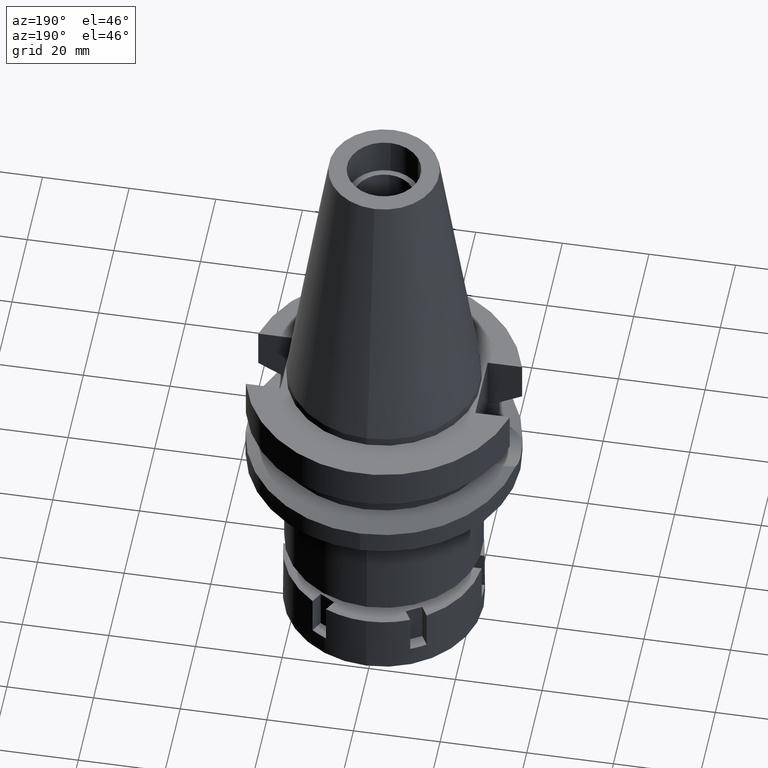
[diagram: clean part render]
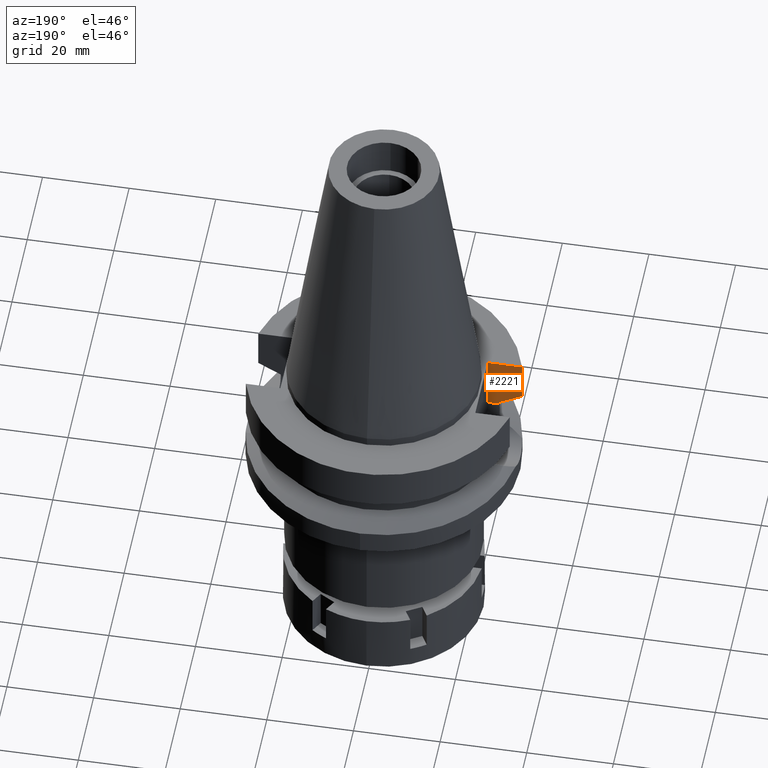
[diagram: same view with one face highlighted and labeled with its STEP entity id]
A machine part, auxiliary view. The second image highlights one B-rep face of the part: STEP entity #2221.
In plain terms, the highlighted planar face has unit normal (0, -1, 0).
Its self-contained STEP definition (entity closure, byte-faithful):
#1 = VERTEX_POINT ( 'NONE', #3275 ) ;
#72 = CARTESIAN_POINT ( 'NONE',  ( -22.50000000000000000, -8.050000000000000711, -14.94999999999999929 ) ) ;
#87 = FACE_OUTER_BOUND ( 'NONE', #2312, .T. ) ;
#116 = ORIENTED_EDGE ( 'NONE', *, *, #3330, .T. ) ;
#129 = DIRECTION ( 'NONE',  ( -1.000000000000000000, 3.550916904668000126E-14, 0.0000000000000000000 ) ) ;
#192 = ORIENTED_EDGE ( 'NONE', *, *, #829, .T. ) ;
#246 = ORIENTED_EDGE ( 'NONE', *, *, #1316, .F. ) ;
#391 = VECTOR ( 'NONE', #3412, 1000.000000000000114 ) ;
#409 = CARTESIAN_POINT ( 'NONE',  ( -22.50000000000000000, -8.050000000000000711, -2.000000000000000000 ) ) ;
#723 = CARTESIAN_POINT ( 'NONE',  ( -25.24772413746000055, -8.049995396191999220, -14.45229217772000041 ) ) ;
#791 = EDGE_CURVE ( 'NONE', #2329, #1747, #3487, .T. ) ;
#829 = EDGE_CURVE ( 'NONE', #2283, #1747, #2604, .T. ) ;
#872 = VERTEX_POINT ( 'NONE', #2079 ) ;
#880 = DIRECTION ( 'NONE',  ( 0.0000000000000000000, 0.0000000000000000000, -1.000000000000000000 ) ) ;
#890 = ORIENTED_EDGE ( 'NONE', *, *, #3099, .T. ) ;
#951 = CARTESIAN_POINT ( 'NONE',  ( -25.24772266958000344, -8.050000000000000711, -14.94999999999999929 ) ) ;
#961 = VECTOR ( 'NONE', #129, 1000.000000000000000 ) ;
#1171 = ORIENTED_EDGE ( 'NONE', *, *, #791, .F. ) ;
#1185 = DIRECTION ( 'NONE',  ( 0.0000000000000000000, -1.000000000000000000, 0.0000000000000000000 ) ) ;
#1316 = EDGE_CURVE ( 'NONE', #2505, #872, #3375, .T. ) ;
#1320 = AXIS2_PLACEMENT_3D ( 'NONE', #72, #1185, #1502 ) ;
#1330 = LINE ( 'NONE', #2425, #2061 ) ;
#1345 = DIRECTION ( 'NONE',  ( 2.014680238284988723E-08, -7.621779753744955794E-08, 0.9999999999999968914 ) ) ;
#1502 = DIRECTION ( 'NONE',  ( 0.0000000000000000000, 0.0000000000000000000, -1.000000000000000000 ) ) ;
#1549 = EDGE_CURVE ( 'NONE', #2329, #872, #2982, .T. ) ;
#1747 = VERTEX_POINT ( 'NONE', #2075 ) ;
#1841 = DIRECTION ( 'NONE',  ( -1.000000000000000000, 1.616208268639000174E-14, -1.292966614911000084E-14 ) ) ;
#1894 = CARTESIAN_POINT ( 'NONE',  ( -30.45402291549999774, -8.049999270937000517, -11.56551221918000039 ) ) ;
#1977 = CARTESIAN_POINT ( 'NONE',  ( -22.50000000000000000, -8.050000000000000711, -2.000000000000000000 ) ) ;
#2061 = VECTOR ( 'NONE', #1841, 1000.000000000000000 ) ;
#2075 = CARTESIAN_POINT ( 'NONE',  ( -25.24772413746000055, -8.049995396191999220, -14.45229217772000041 ) ) ;
#2079 = CARTESIAN_POINT ( 'NONE',  ( -30.45402272279000044, -8.050000000000000711, -2.000000000000000000 ) ) ;
#2221 = ADVANCED_FACE ( 'NONE', ( #87 ), #2512, .F. ) ;
#2267 = CARTESIAN_POINT ( 'NONE',  ( -30.45402291549999774, -8.049999270937000517, -11.56551221918000039 ) ) ;
#2269 = LINE ( 'NONE', #1977, #3270 ) ;
#2283 = VERTEX_POINT ( 'NONE', #3478 ) ;
#2312 = EDGE_LOOP ( 'NONE', ( #1171, #3115, #246, #890, #116, #192 ) ) ;
#2329 = VERTEX_POINT ( 'NONE', #3223 ) ;
#2420 = CARTESIAN_POINT ( 'NONE',  ( -22.50000000000000000, -8.050000000000000711, -2.000000000000000000 ) ) ;
#2425 = CARTESIAN_POINT ( 'NONE',  ( -22.50000000000000000, -8.050000000000000711, -14.94999999999999929 ) ) ;
#2505 = VERTEX_POINT ( 'NONE', #2420 ) ;
#2512 = PLANE ( 'NONE',  #1320 ) ;
#2604 = LINE ( 'NONE', #951, #391 ) ;
#2826 = CARTESIAN_POINT ( 'NONE',  ( -26.83754594054483888, -8.049990782187768090, -13.57774900847907062 ) ) ;
#2982 = LINE ( 'NONE', #1894, #3261 ) ;
#3099 = EDGE_CURVE ( 'NONE', #2505, #1, #2269, .T. ) ;
#3115 = ORIENTED_EDGE ( 'NONE', *, *, #1549, .T. ) ;
#3223 = CARTESIAN_POINT ( 'NONE',  ( -30.45402291549999774, -8.049999270937000517, -11.56551221918000039 ) ) ;
#3261 = VECTOR ( 'NONE', #1345, 1000.000000000000000 ) ;
#3270 = VECTOR ( 'NONE', #880, 1000.000000000000000 ) ;
#3275 = CARTESIAN_POINT ( 'NONE',  ( -22.50000000000000000, -8.050000000000000711, -14.94999999999999929 ) ) ;
#3330 = EDGE_CURVE ( 'NONE', #1, #2283, #1330, .T. ) ;
#3375 = LINE ( 'NONE', #409, #961 ) ;
#3412 = DIRECTION ( 'NONE',  ( -2.949280787093910701E-06, 9.250021163603722903E-06, 0.9999999999528693673 ) ) ;
#3450 = CARTESIAN_POINT ( 'NONE',  ( -28.57292307904591411, -8.049998542826038772, -12.61549617544695145 ) ) ;
#3478 = CARTESIAN_POINT ( 'NONE',  ( -25.24772266958000344, -8.050000000000000711, -14.94999999999999929 ) ) ;
#3487 = B_SPLINE_CURVE_WITH_KNOTS ( 'NONE', 3,
 ( #2267, #3450, #2826, #723 ),
 .UNSPECIFIED., .F., .F.,
 ( 4, 4 ),
 ( 0.0000000000000000000, 1.000000000000000000 ),
 .UNSPECIFIED. ) ;